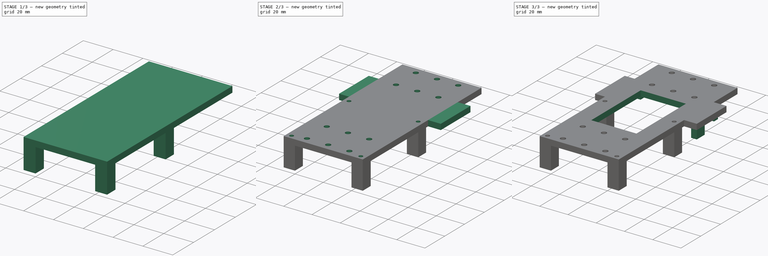
[diagram: build sequence overview — one tinted view per stage of 3, left to right]
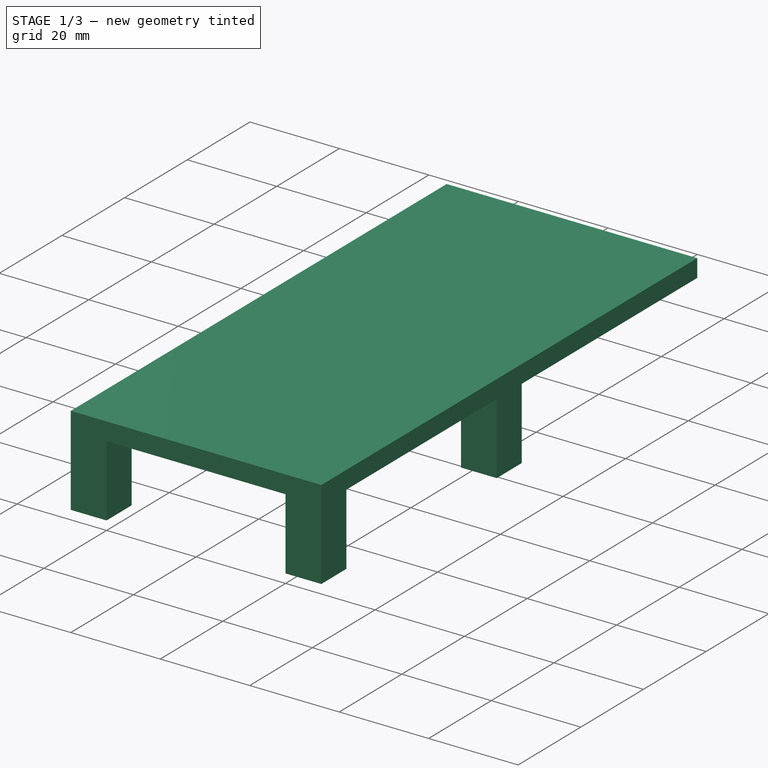
[diagram: stage 1 of 3 — iso view after this stage's code; geometry added in this stage tinted green]
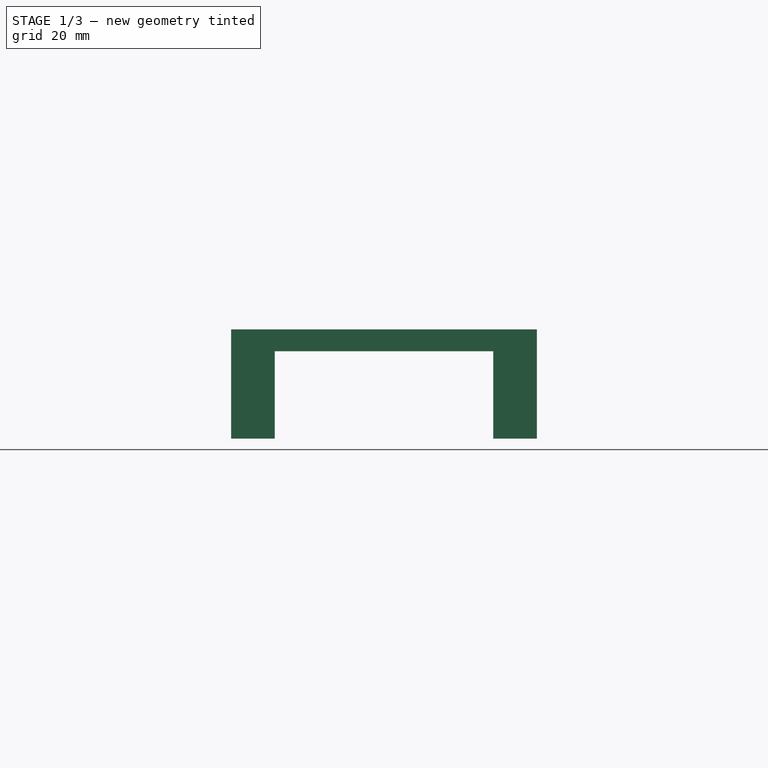
[diagram: stage 1 of 3 — front view after this stage's code; geometry added in this stage tinted green]
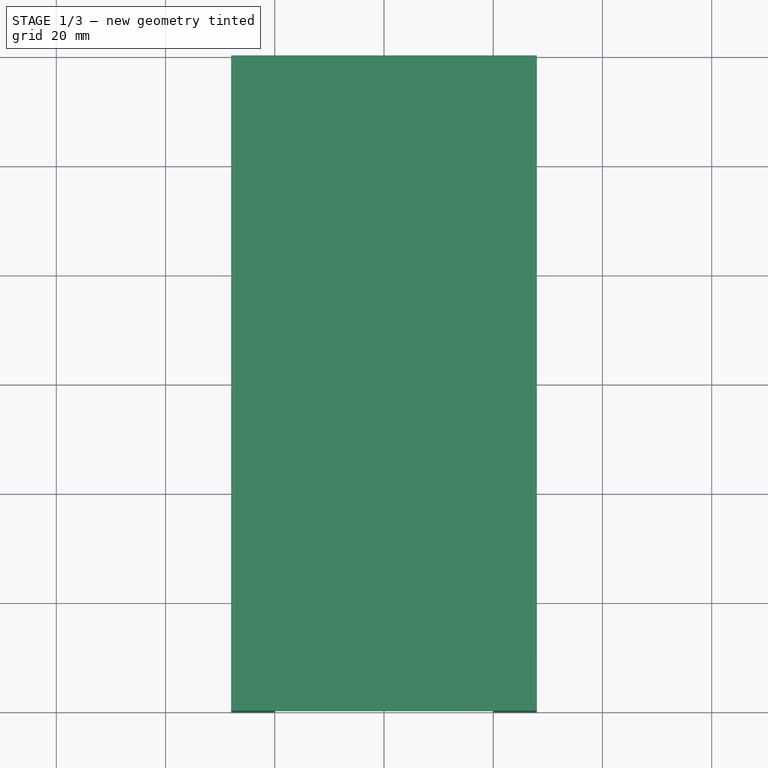
[diagram: stage 1 of 3 — top view after this stage's code; geometry added in this stage tinted green]
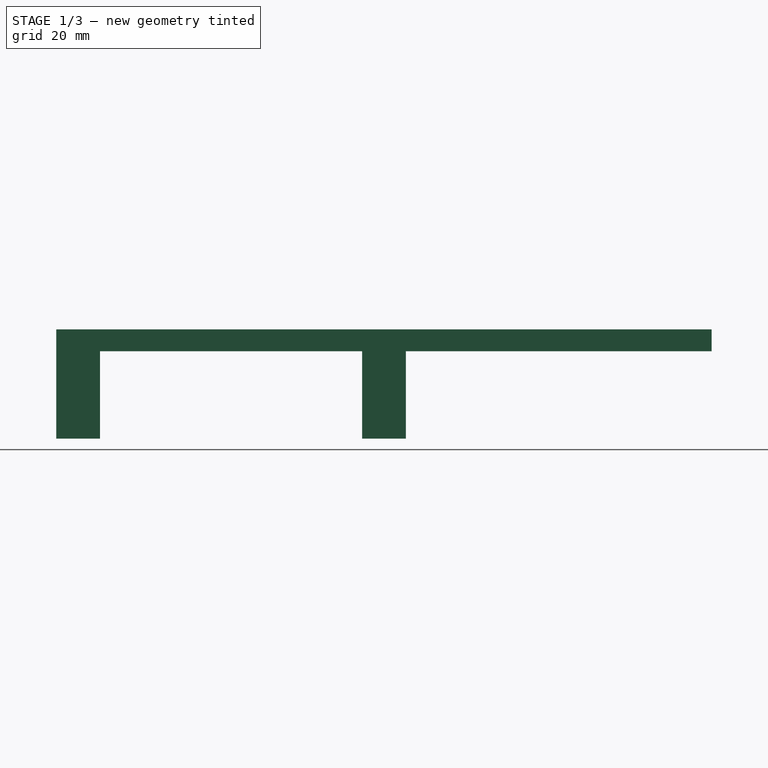
[diagram: stage 1 of 3 — right view after this stage's code; geometry added in this stage tinted green]
FCSTD DOCUMENT  (FreeCAD 0.21R33694 (Git))
Label: basePlateTorsoUpper
License: All rights reserved
LicenseURL: http://en.wikipedia.org/wiki/All_rights_reserved
objects: Sketcher::SketchObject×7, PartDesign::Pad×4, PartDesign::Pocket×3, PartDesign::Body×1
note: 22 computed .brp shape members not serialized (recipe doc carries the construction recipe); baked Part::Feature solids carry a one-line shape summary decoded from their .brp

FEATURE [Sketcher::SketchObject] Sketch
  FullyConstrained = true
  MapMode = 5
  Support = -> [XY_Plane]
  sketch-geometry (4):
    g0: LineSegment StartX=-28 StartY=60 StartZ=0 EndX=28 EndY=60 EndZ=0
    g1: LineSegment StartX=28 StartY=60 StartZ=0 EndX=28 EndY=-60 EndZ=0
    g2: LineSegment StartX=28 StartY=-60 StartZ=0 EndX=-28 EndY=-60 EndZ=0
    g3: LineSegment StartX=-28 StartY=-60 StartZ=0 EndX=-28 EndY=60 EndZ=0
  constraints (12):
    c: Coincident(g0,g1)
    c: Coincident(g1,g2)
    c: Coincident(g2,g3)
    c: Coincident(g3,g0)
    c: Horizontal(g0)
    c: Horizontal(g2)
    c: Vertical(g1)
    c: Vertical(g3)
    c: DistanceX(g-1,g0) = 28
    c: DistanceX(g0,g-1) = 28
    c: DistanceY(g-1,g0) = 60
    c: DistanceY(g2,g-1) = 60
FEATURE [PartDesign::Pad] Pad
  Direction = (0,0,1)
  Length = 4
  Length2 = 10
  Profile = -> Sketch
  ReferenceAxis = -> Sketch [N_Axis]
  Type = 0
FEATURE [Sketcher::SketchObject] Sketch002
  FullyConstrained = true
  MapMode = 5
  Placement = pos=(0,0,0) rot=(1,0,0;3.14159rad)
  sketch-geometry (16):
    g0: LineSegment StartX=28 StartY=-4 StartZ=0 EndX=20 EndY=-4 EndZ=0
    g1: LineSegment StartX=20 StartY=60 StartZ=0 EndX=28 EndY=60 EndZ=0
    g2: LineSegment StartX=28 StartY=60 StartZ=0 EndX=28 EndY=52 EndZ=0
    g3: LineSegment StartX=28 StartY=52 StartZ=0 EndX=20 EndY=52 EndZ=0
    g4: LineSegment StartX=20 StartY=52 StartZ=0 EndX=20 EndY=60 EndZ=0
    g5: LineSegment StartX=-28 StartY=60 StartZ=0 EndX=-20 EndY=60 EndZ=0
    g6: LineSegment StartX=-20 StartY=60 StartZ=0 EndX=-20 EndY=52 EndZ=0
    g7: LineSegment StartX=-20 StartY=52 StartZ=0 EndX=-28 EndY=52 EndZ=0
    g8: LineSegment StartX=-28 StartY=52 StartZ=0 EndX=-28 EndY=60 EndZ=0
    g9: LineSegment StartX=-20 StartY=-4 StartZ=0 EndX=-28 EndY=-4 EndZ=0
    g10: LineSegment StartX=20 StartY=4 StartZ=0 EndX=28 EndY=4 EndZ=0
    g11: LineSegment StartX=-28 StartY=4 StartZ=0 EndX=-20 EndY=4 EndZ=0
    g12: LineSegment StartX=28 StartY=4 StartZ=0 EndX=28 EndY=-4 EndZ=0
    g13: LineSegment StartX=20 StartY=4 StartZ=0 EndX=20 EndY=-4 EndZ=0
    g14: LineSegment StartX=-20 StartY=4 StartZ=0 EndX=-20 EndY=-4 EndZ=0
    g15: LineSegment StartX=-28 StartY=4 StartZ=0 EndX=-28 EndY=-4 EndZ=0
  constraints (48):
    c: Horizontal(g0)
    c: Coincident(g1,g2)
    c: Coincident(g2,g3)
    c: Coincident(g3,g4)
    c: Coincident(g4,g1)
    c: Horizontal(g1)
    c: Horizontal(g3)
    c: Vertical(g2)
    c: Vertical(g4)
    c: Coincident(g5,g6)
    c: Coincident(g6,g7)
    c: Coincident(g7,g8)
    c: Coincident(g8,g5)
    c: Horizontal(g5)
    c: Horizontal(g7)
    c: Vertical(g6)
    c: Vertical(g8)
    c: Horizontal(g9)
    c: DistanceY(g5,g1) = 0
    c: DistanceY(g3,g6) = 0
    c: DistanceY(g9,g0) = 0
    c: DistanceY(g6,g5) = 8
    c: DistanceY(g-1,g5) = 60
    c: Horizontal(g10)
    c: Horizontal(g11)
    c: DistanceY(g11,g10) = 0
    c: Coincident(g12,g10)
    c: Coincident(g12,g0)
    c: Vertical(g12)
    c: Coincident(g13,g10)
    c: Coincident(g13,g0)
    c: Vertical(g13)
    c: Coincident(g14,g11)
    c: Coincident(g14,g9)
    c: Vertical(g14)
    c: Coincident(g15,g11)
    c: Coincident(g15,g9)
    c: Vertical(g15)
    c: DistanceY(g-1,g10) = 4
    c: DistanceY(g0,g-1) = 4
    c: DistanceX(g9,g-1) = 20
    c: DistanceX(g9,g9) = 8
    c: DistanceX(g-1,g0) = 20
    c: DistanceX(g0,g0) = 8
    c: DistanceX(g6,g11) = 0
    c: DistanceX(g3,g10) = 0
    c: DistanceX(g11,g7) = 0
    c: DistanceX(g2,g10) = 0
FEATURE [PartDesign::Pad] Pad001
  BaseFeature = -> Pad
  Direction = (0,0,-1)
  Length = 16
  Length2 = 10
  Profile = -> Sketch002
  ReferenceAxis = -> Sketch002 [N_Axis]
  Type = 0
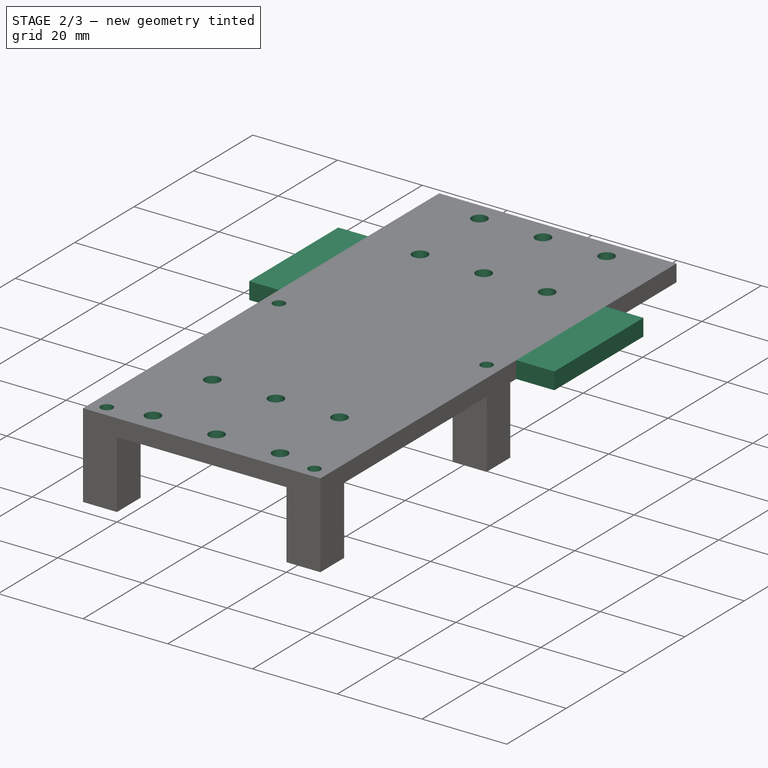
[diagram: stage 2 of 3 — iso view after this stage's code; geometry added in this stage tinted green]
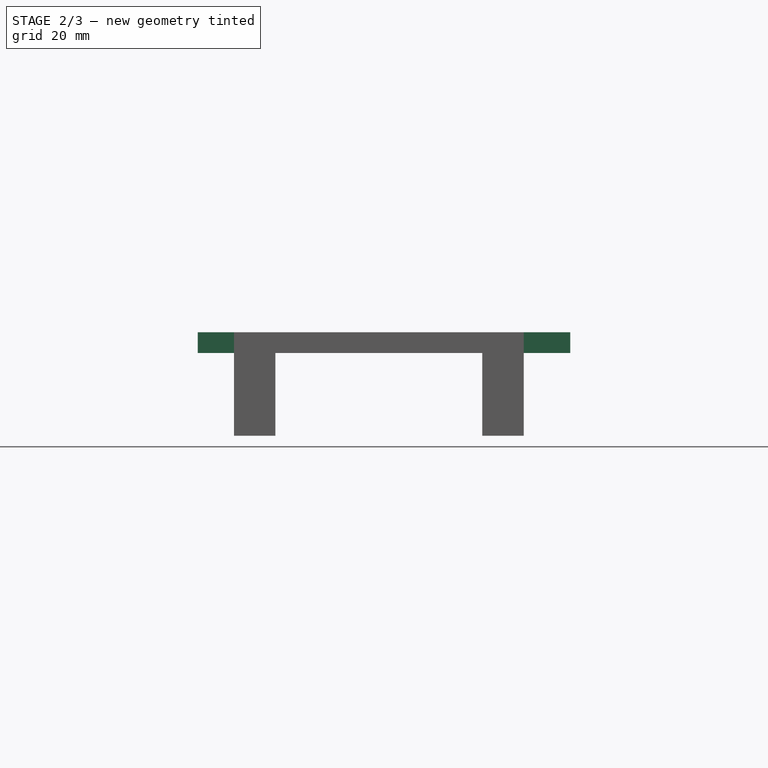
[diagram: stage 2 of 3 — front view after this stage's code; geometry added in this stage tinted green]
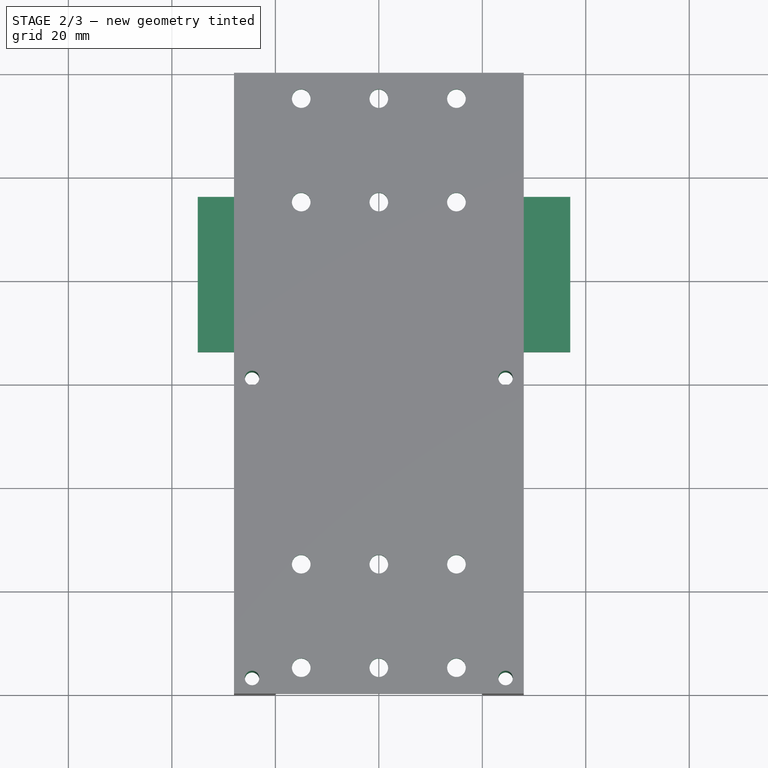
[diagram: stage 2 of 3 — top view after this stage's code; geometry added in this stage tinted green]
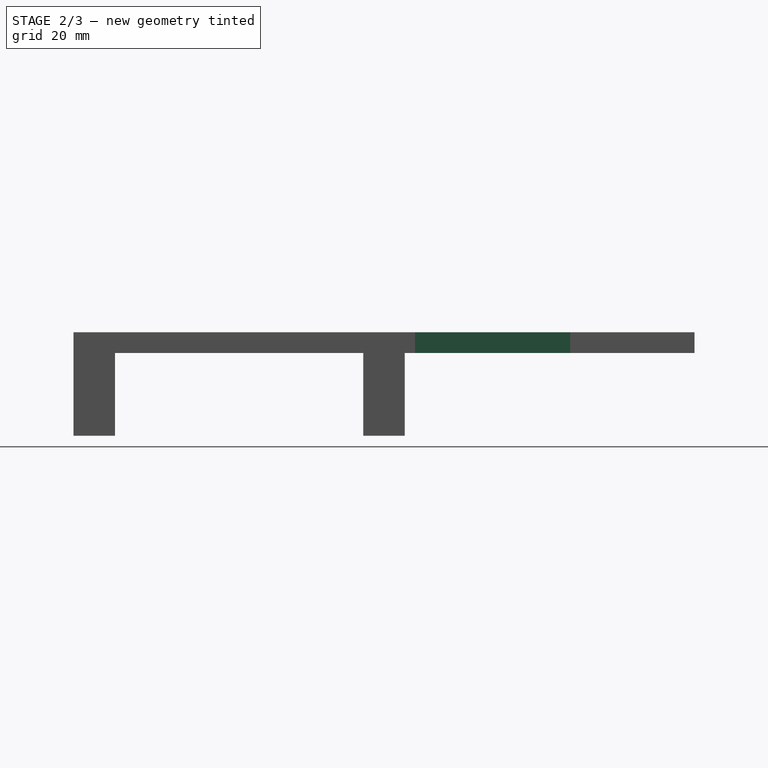
[diagram: stage 2 of 3 — right view after this stage's code; geometry added in this stage tinted green]
FEATURE [Sketcher::SketchObject] Sketch003
  FullyConstrained = true
  MapMode = 5
  Placement = pos=(0,0,-16) rot=(1,0,0;3.14159rad)
  Support = -> [Pad001]
  sketch-geometry (4):
    g0: Circle CenterX=24.5 CenterY=57 CenterZ=0 NormalX=0 NormalY=0 NormalZ=1 AngleXU=0 Radius=1.4
    g1: Circle CenterX=24.5 CenterY=-1 CenterZ=0 NormalX=0 NormalY=0 NormalZ=1 AngleXU=0 Radius=1.4
    g2: Circle CenterX=-24.5 CenterY=-1 CenterZ=0 NormalX=0 NormalY=0 NormalZ=1 AngleXU=0 Radius=1.4
    g3: Circle CenterX=-24.5 CenterY=57 CenterZ=0 NormalX=0 NormalY=0 NormalZ=1 AngleXU=0 Radius=1.4
  constraints (12):
    c: Radius(g0) = 1.4
    c: Radius(g3) = 1.4
    c: Radius(g2) = 1.4
    c: Radius(g1) = 1.4
    c: DistanceX(g1,g0) = 0
    c: DistanceX(g2,g3) = 0
    c: DistanceY(g0,g3) = 0
    c: DistanceY(g2,g1) = 0
    c: DistanceY(g2,g3) = 58
    c: DistanceX(g-1,g0) = 24.5
    c: DistanceX(g3,g-1) = 24.5
    c: DistanceY(g-1,g3) = 57
FEATURE [PartDesign::Pocket] Pocket
  BaseFeature = -> Pad001
  Direction = (0,0,1)
  Length = 20
  Length2 = 5
  Profile = -> Sketch003
  ReferenceAxis = -> Sketch003 [N_Axis]
  Type = 0
FEATURE [Sketcher::SketchObject] Sketch004
  FullyConstrained = true
  MapMode = 5
  Placement = pos=(0,0,0) rot=(1,0,0;3.14159rad)
  Support = -> [Pocket]
  sketch-geometry (12):
    g0: Circle CenterX=0 CenterY=-35 CenterZ=0 NormalX=0 NormalY=0 NormalZ=1 AngleXU=0 Radius=1.8
    g1: Circle CenterX=0 CenterY=-55 CenterZ=0 NormalX=0 NormalY=0 NormalZ=1 AngleXU=0 Radius=1.8
    g2: Circle CenterX=15 CenterY=-35 CenterZ=0 NormalX=0 NormalY=0 NormalZ=1 AngleXU=0 Radius=1.8
    g3: Circle CenterX=15 CenterY=-55 CenterZ=0 NormalX=0 NormalY=0 NormalZ=1 AngleXU=0 Radius=1.8
    g4: Circle CenterX=-15 CenterY=-35 CenterZ=0 NormalX=0 NormalY=0 NormalZ=1 AngleXU=0 Radius=1.8
    g5: Circle CenterX=-15 CenterY=-55 CenterZ=0 NormalX=0 NormalY=0 NormalZ=1 AngleXU=0 Radius=1.8
    g6: Circle CenterX=15 CenterY=55 CenterZ=0 NormalX=0 NormalY=0 NormalZ=1 AngleXU=0 Radius=1.8
    g7: Circle CenterX=0 CenterY=55 CenterZ=0 NormalX=0 NormalY=0 NormalZ=1 AngleXU=0 Radius=1.8
    g8: Circle CenterX=-15 CenterY=55 CenterZ=0 NormalX=0 NormalY=0 NormalZ=1 AngleXU=0 Radius=1.8
    g9: Circle CenterX=-15 CenterY=35 CenterZ=0 NormalX=0 NormalY=0 NormalZ=1 AngleXU=0 Radius=1.8
    g10: Circle CenterX=0 CenterY=35 CenterZ=0 NormalX=0 NormalY=0 NormalZ=1 AngleXU=0 Radius=1.8
    g11: Circle CenterX=15 CenterY=35 CenterZ=0 NormalX=0 NormalY=0 NormalZ=1 AngleXU=0 Radius=1.8
  constraints (36):
    c: Radius(g2) = 1.8
    c: Radius(g0) = 1.8
    c: Radius(g4) = 1.8
    c: Radius(g5) = 1.8
    c: Radius(g1) = 1.8
    c: Radius(g3) = 1.8
    c: DistanceX(g3,g2) = 0
    c: DistanceX(g0,g1) = 0
    c: DistanceX(g4,g5) = 0
    c: DistanceY(g0,g2) = 0
    c: DistanceY(g0,g4) = 0
    c: DistanceY(g5,g1) = 0
    c: DistanceY(g3,g1) = 0
    c: DistanceY(g1,g0) = 20
    c: DistanceX(g0,g-1) = 0
    c: PointOnObject(g7,g-2)
    c: PointOnObject(g10,g-2)
    c: Radius(g6) = 1.8
    c: Radius(g7) = 1.8
    c: Radius(g8) = 1.8
    c: Radius(g9) = 1.8
    c: Radius(g10) = 1.8
    c: Radius(g11) = 1.8
    c: DistanceY(g10,g9) = 0
    c: DistanceY(g10,g11) = 0
    c: DistanceY(g6,g7) = 0
    c: DistanceY(g8,g7) = 0
    c: DistanceX(g8,g9) = 0
    c: DistanceX(g11,g6) = 0
    c: DistanceY(g9,g8) = 20
    c: DistanceX(g8,g7) = 15
    c: DistanceX(g7,g6) = 15
    c: DistanceY(g-1,g7) = 55
    c: DistanceY(g1,g-1) = 55
    c: DistanceX(g11,g2) = 0
    c: DistanceX(g4,g9) = 0
FEATURE [PartDesign::Pocket] Pocket001
  BaseFeature = -> Pocket
  Direction = (0,0,1)
  Length = 5
  Length2 = 5
  Profile = -> Sketch004
  ReferenceAxis = -> Sketch004 [N_Axis]
  Type = 0
FEATURE [Sketcher::SketchObject] Sketch006
  FullyConstrained = true
  MapMode = 5
  Support = -> [XY_Plane]
  sketch-geometry (8):
    g0: LineSegment StartX=-28 StartY=6 StartZ=0 EndX=-28 EndY=36 EndZ=0
    g1: LineSegment StartX=28 StartY=36 StartZ=0 EndX=28 EndY=6 EndZ=0
    g2: LineSegment StartX=37 StartY=6 StartZ=0 EndX=37 EndY=36 EndZ=0
    g3: LineSegment StartX=-35 StartY=36 StartZ=0 EndX=-35 EndY=6 EndZ=0
    g4: LineSegment StartX=-35 StartY=6 StartZ=0 EndX=-28 EndY=6 EndZ=0
    g5: LineSegment StartX=28 StartY=6 StartZ=0 EndX=37 EndY=6 EndZ=0
    g6: LineSegment StartX=28 StartY=36 StartZ=0 EndX=37 EndY=36 EndZ=0
    g7: LineSegment StartX=-35 StartY=36 StartZ=0 EndX=-28 EndY=36 EndZ=0
  constraints (24):
    c: Vertical(g0)
    c: Vertical(g1)
    c: Vertical(g2)
    c: Vertical(g3)
    c: DistanceX(g1,g2) = 9
    c: DistanceX(g3,g0) = 7
    c: DistanceY(g1,g2) = 0
    c: DistanceY(g-1,g1) = 36
    c: Horizontal(g4)
    c: Horizontal(g5)
    c: Coincident(g1,g5)
    c: Coincident(g2,g5)
    c: Coincident(g3,g4)
    c: Coincident(g0,g4)
    c: DistanceX(g0,g-1) = 28
    c: DistanceY(g0,g1) = 0
    c: DistanceY(g-1,g1) = 6
    c: DistanceX(g-1,g1) = 28
    c: DistanceY(g1,g3) = 0
    c: DistanceY(g0,g1) = 0
    c: Coincident(g6,g1)
    c: Coincident(g6,g2)
    c: Coincident(g7,g3)
    c: Coincident(g7,g0)
FEATURE [PartDesign::Pad] Pad003
  BaseFeature = -> Pocket001
  Direction = (0,0,1)
  Length = 4
  Length2 = 10
  Profile = -> Sketch006
  ReferenceAxis = -> Sketch006 [N_Axis]
  Type = 0
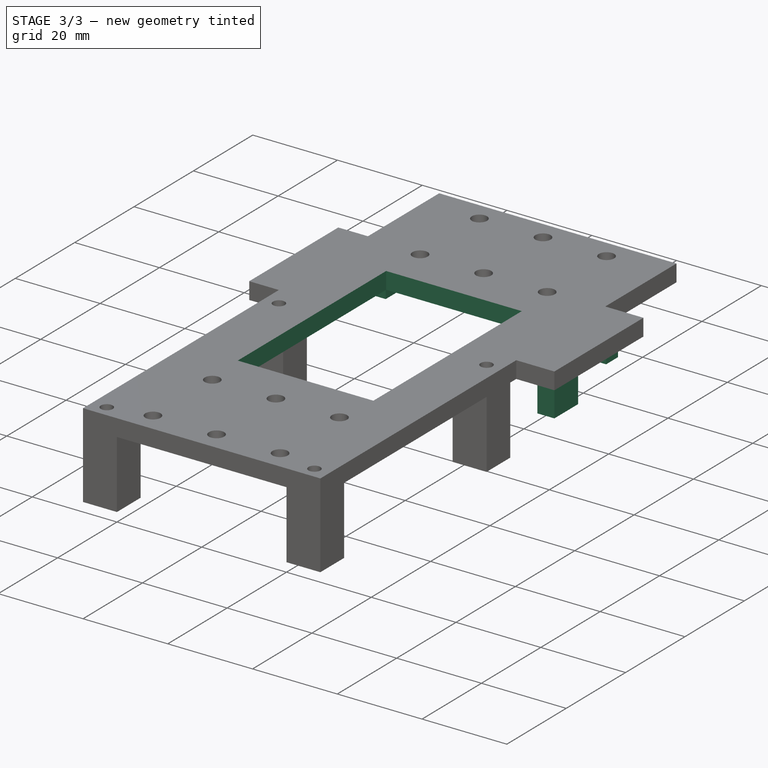
[diagram: stage 3 of 3 — iso view after this stage's code; geometry added in this stage tinted green]
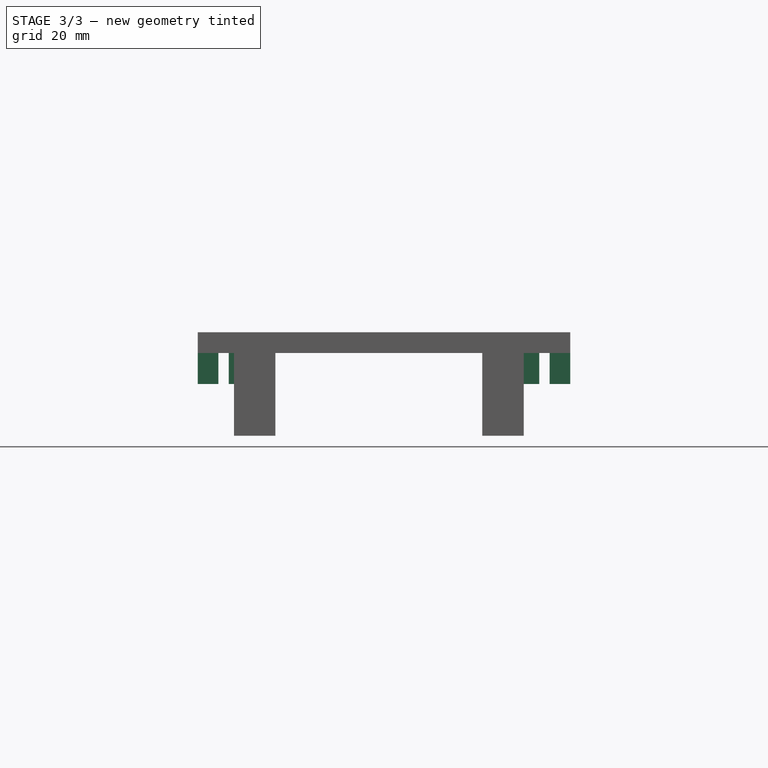
[diagram: stage 3 of 3 — front view after this stage's code; geometry added in this stage tinted green]
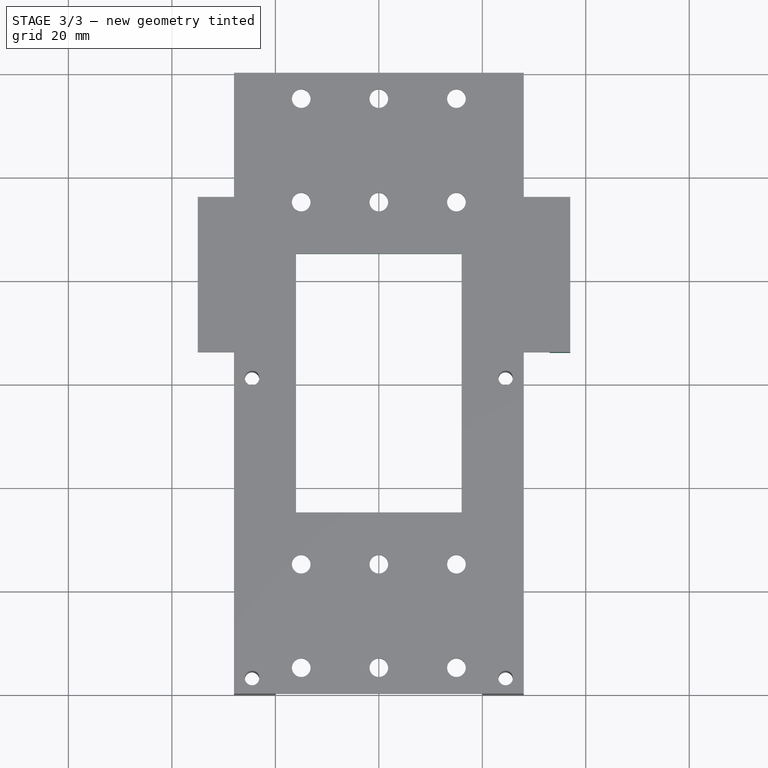
[diagram: stage 3 of 3 — top view after this stage's code; geometry added in this stage tinted green]
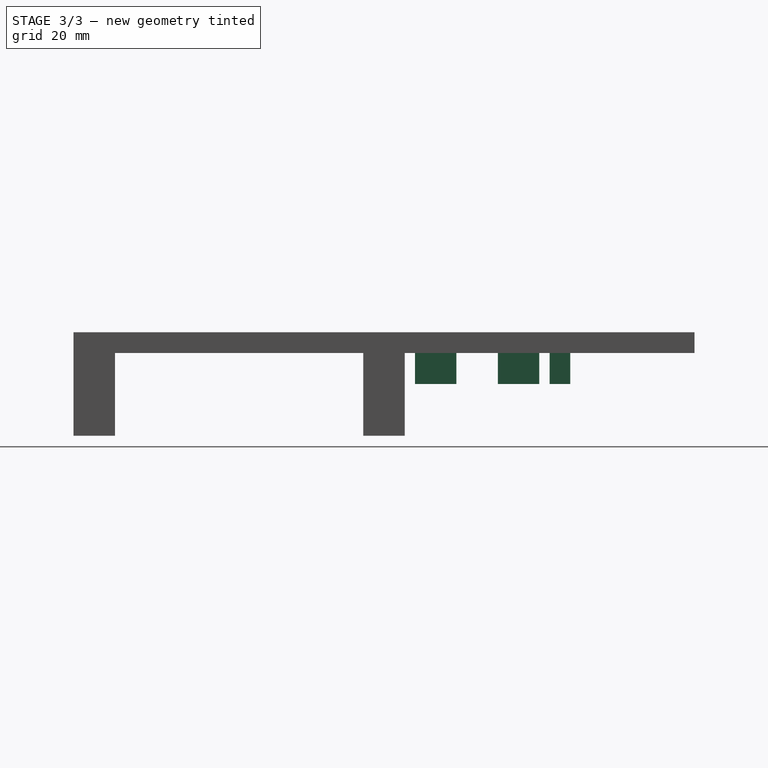
[diagram: stage 3 of 3 — right view after this stage's code; geometry added in this stage tinted green]
FEATURE [Sketcher::SketchObject] Sketch007
  FullyConstrained = true
  MapMode = 5
  Placement = pos=(0,0,0) rot=(1,0,0;3.14159rad)
  Support = -> [Pad003]
  sketch-geometry (16):
    g0: LineSegment StartX=33 StartY=-6 StartZ=0 EndX=37 EndY=-6 EndZ=0
    g1: LineSegment StartX=37 StartY=-6 StartZ=0 EndX=37 EndY=-14 EndZ=0
    g2: LineSegment StartX=37 StartY=-14 StartZ=0 EndX=33 EndY=-14 EndZ=0
    g3: LineSegment StartX=33 StartY=-14 StartZ=0 EndX=33 EndY=-6 EndZ=0
    g4: LineSegment StartX=-35 StartY=-22 StartZ=0 EndX=-31 EndY=-22 EndZ=0
    g5: LineSegment StartX=-31 StartY=-22 StartZ=0 EndX=-31 EndY=-30 EndZ=0
    g6: LineSegment StartX=-31 StartY=-30 StartZ=0 EndX=-35 EndY=-30 EndZ=0
    g7: LineSegment StartX=-35 StartY=-30 StartZ=0 EndX=-35 EndY=-22 EndZ=0
    g8: LineSegment StartX=23 StartY=-32 StartZ=0 EndX=31 EndY=-32 EndZ=0
    g9: LineSegment StartX=31 StartY=-32 StartZ=0 EndX=31 EndY=-36 EndZ=0
    g10: LineSegment StartX=31 StartY=-36 StartZ=0 EndX=23 EndY=-36 EndZ=0
    g11: LineSegment StartX=23 StartY=-36 StartZ=0 EndX=23 EndY=-32 EndZ=0
    g12: LineSegment StartX=-29 StartY=-32 StartZ=0 EndX=-21 EndY=-32 EndZ=0
    g13: LineSegment StartX=-21 StartY=-32 StartZ=0 EndX=-21 EndY=-36 EndZ=0
    g14: LineSegment StartX=-21 StartY=-36 StartZ=0 EndX=-29 EndY=-36 EndZ=0
    g15: LineSegment StartX=-29 StartY=-36 StartZ=0 EndX=-29 EndY=-32 EndZ=0
  constraints (48):
    c: Coincident(g0,g1)
    c: Coincident(g1,g2)
    c: Coincident(g2,g3)
    c: Coincident(g3,g0)
    c: Horizontal(g0)
    c: Horizontal(g2)
    c: Vertical(g1)
    c: Vertical(g3)
    c: Coincident(g4,g5)
    c: Coincident(g5,g6)
    c: Coincident(g6,g7)
    c: Coincident(g7,g4)
    c: Horizontal(g4)
    c: Horizontal(g6)
    c: Vertical(g5)
    c: Vertical(g7)
    c: DistanceX(g6,g5) = 4
    c: DistanceX(g2,g1) = 4
    c: DistanceX(g-1,g0) = 33
    c: DistanceX(g4,g-1) = 31
    c: DistanceY(g4,g-1) = 22
    c: DistanceY(g5,g4) = 8
    c: Coincident(g8,g9)
    c: Coincident(g9,g10)
    c: Coincident(g10,g11)
    c: Coincident(g11,g8)
    c: Horizontal(g8)
    c: Horizontal(g10)
    c: Vertical(g9)
    c: Vertical(g11)
    c: Coincident(g12,g13)
    c: Coincident(g13,g14)
    c: Coincident(g14,g15)
    c: Coincident(g15,g12)
    c: Horizontal(g12)
    c: Horizontal(g14)
    c: Vertical(g13)
    c: Vertical(g15)
    c: DistanceY(g12,g8) = 0
    c: DistanceY(g10,g13) = 0
    c: DistanceY(g9,g8) = 4
    c: DistanceY(g12,g-1) = 32
    c: DistanceX(g-1,g8) = 23
    c: DistanceX(g12,g-1) = 21
    c: DistanceY(g0,g-1) = 6
    c: DistanceY(g2,g0) = 8
    c: DistanceX(g12,g12) = 8
    c: DistanceX(g8,g8) = 8
FEATURE [PartDesign::Pad] Pad004
  BaseFeature = -> Pad003
  Direction = (0,0,-1)
  Length = 6
  Length2 = 10
  Profile = -> Sketch007
  ReferenceAxis = -> Sketch007 [N_Axis]
  Type = 0
FEATURE [Sketcher::SketchObject] Sketch008
  FullyConstrained = true
  MapMode = 5
  Placement = pos=(0,0,0) rot=(1,0,0;3.14159rad)
  Support = -> [Pad004]
  sketch-geometry (4):
    g0: LineSegment StartX=-16 StartY=25 StartZ=0 EndX=16 EndY=25 EndZ=0
    g1: LineSegment StartX=16 StartY=25 StartZ=0 EndX=16 EndY=-25 EndZ=0
    g2: LineSegment StartX=16 StartY=-25 StartZ=0 EndX=-16 EndY=-25 EndZ=0
    g3: LineSegment StartX=-16 StartY=-25 StartZ=0 EndX=-16 EndY=25 EndZ=0
  constraints (12):
    c: Coincident(g0,g1)
    c: Coincident(g1,g2)
    c: Coincident(g2,g3)
    c: Coincident(g3,g0)
    c: Horizontal(g0)
    c: Horizontal(g2)
    c: Vertical(g1)
    c: Vertical(g3)
    c: DistanceY(g-1,g0) = 25
    c: DistanceY(g1,g-1) = 25
    c: DistanceX(g0,g-1) = 16
    c: DistanceX(g-1,g0) = 16
FEATURE [PartDesign::Pocket] Pocket002
  BaseFeature = -> Pad004
  Direction = (0,0,1)
  Length = 5
  Length2 = 5
  Profile = -> Sketch008
  ReferenceAxis = -> Sketch008 [N_Axis]
  Type = 0
FEATURE [PartDesign::Body] Body
  Group = -> [Sketch,Pad,Sketch002,Pad001,Sketch003,Pocket,Sketch004,Pocket001,Sketch006,Pad003,Sketch007,Pad004,Sketch008,Pocket002]
  Origin = -> Origin
  Tip = -> Pocket002
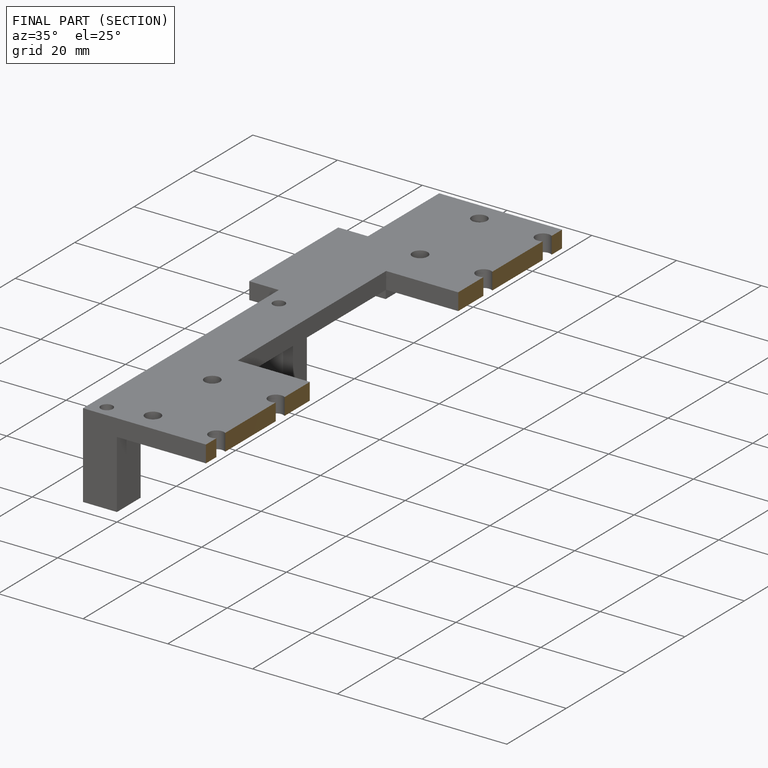
[diagram: finished part — half-section view (interior)]
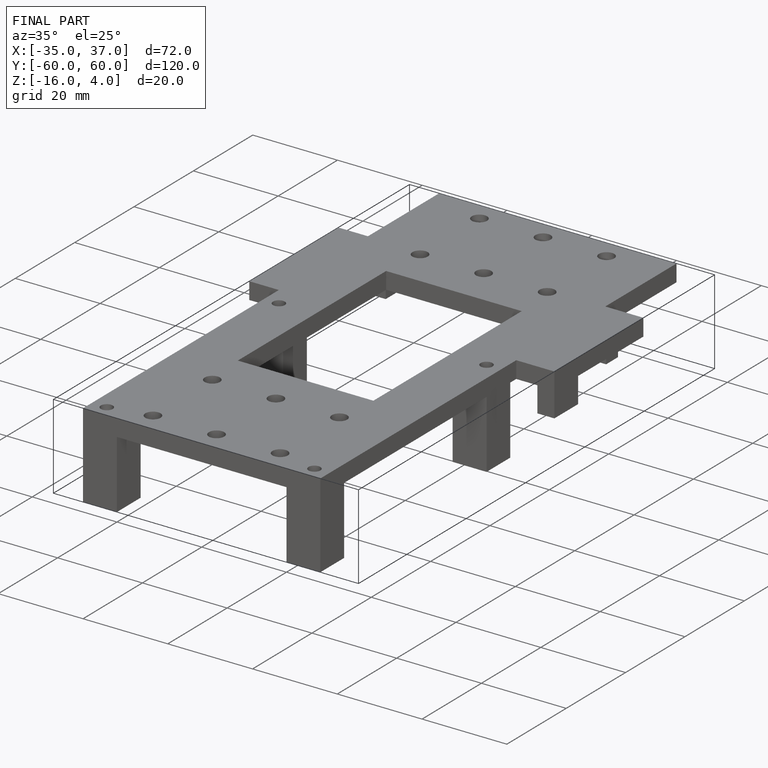
[diagram: finished part — iso view with bounding-box wireframe]
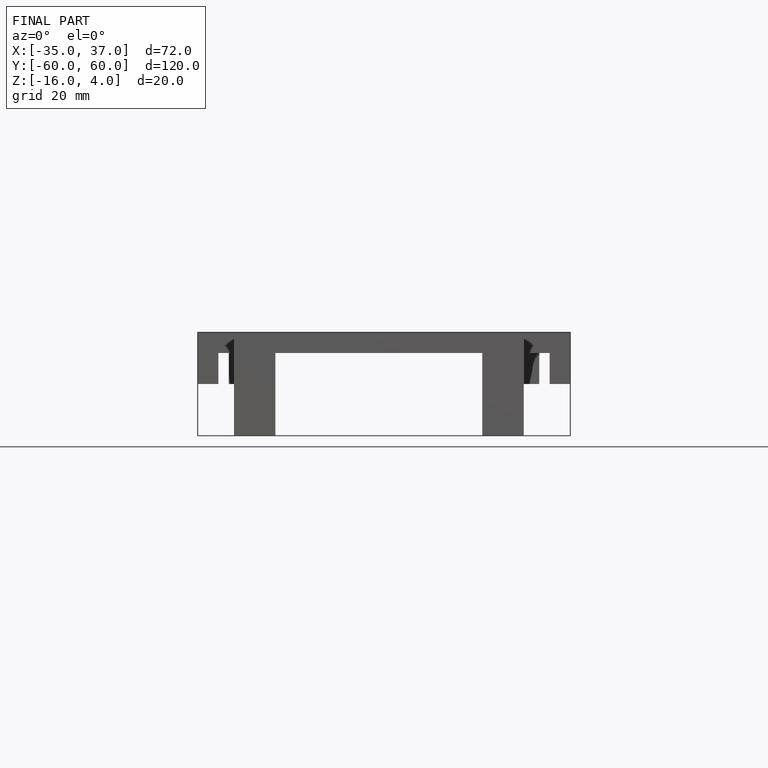
[diagram: finished part — front view with bounding-box wireframe]
